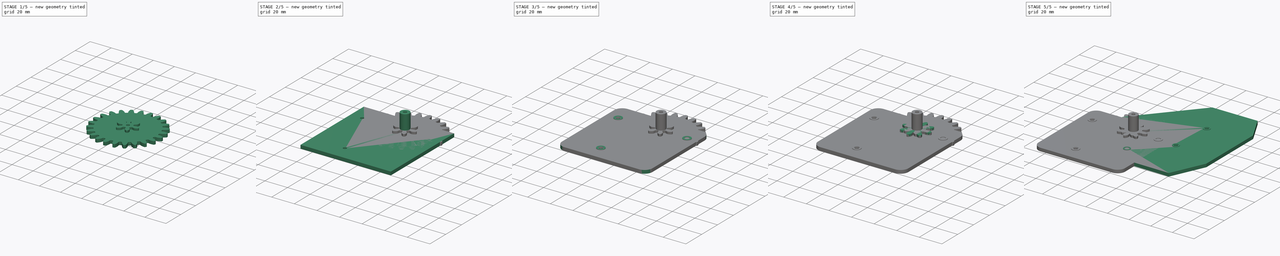
[diagram: build sequence overview — one tinted view per stage of 5, left to right]
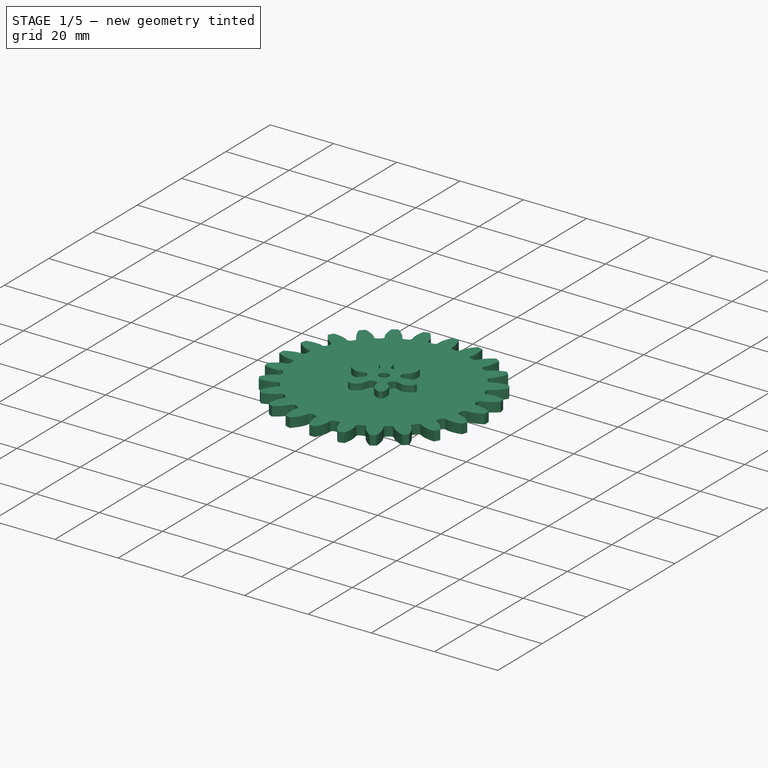
[diagram: stage 1 of 5 — iso view after this stage's code; geometry added in this stage tinted green]
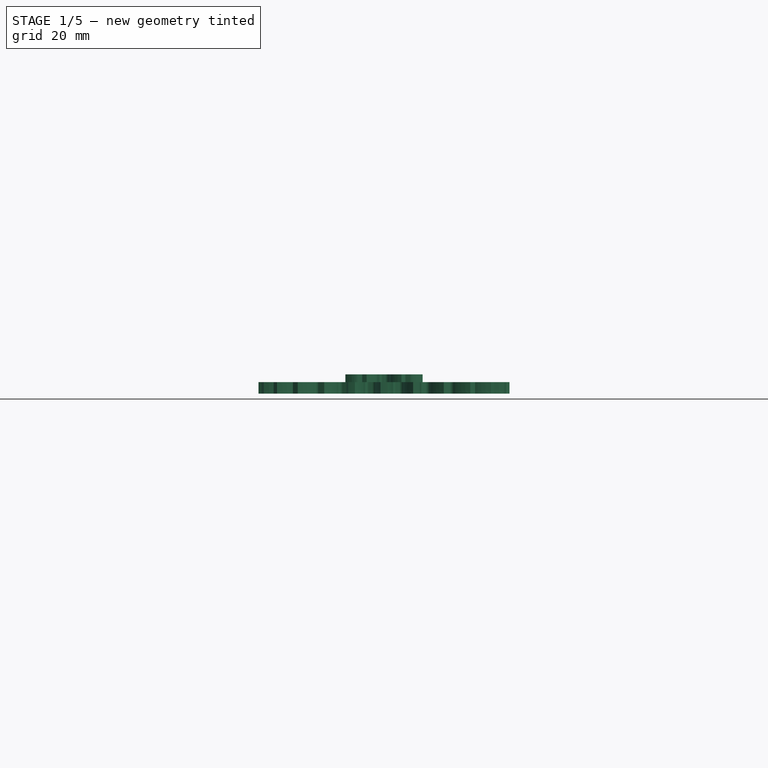
[diagram: stage 1 of 5 — front view after this stage's code; geometry added in this stage tinted green]
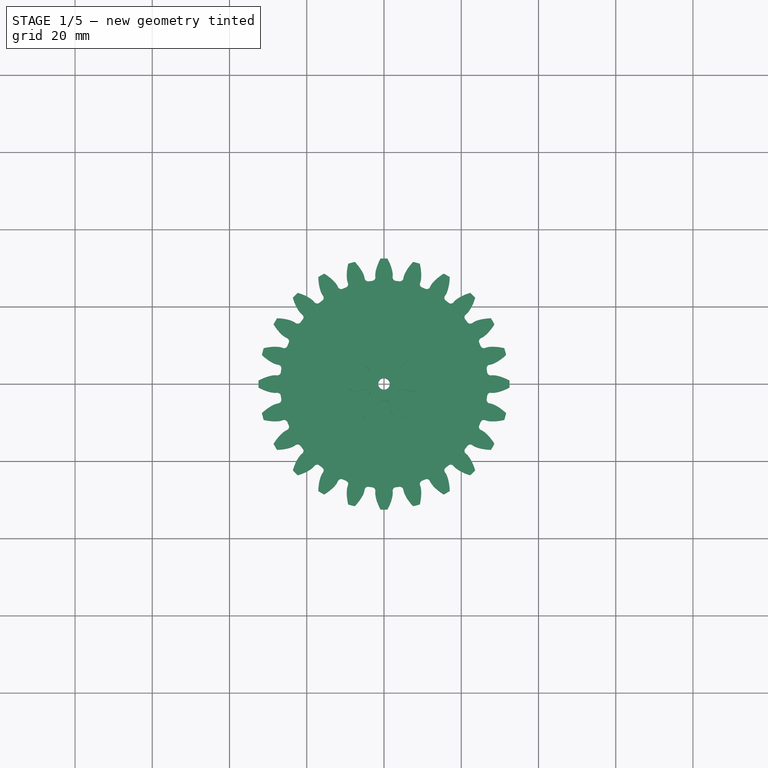
[diagram: stage 1 of 5 — top view after this stage's code; geometry added in this stage tinted green]
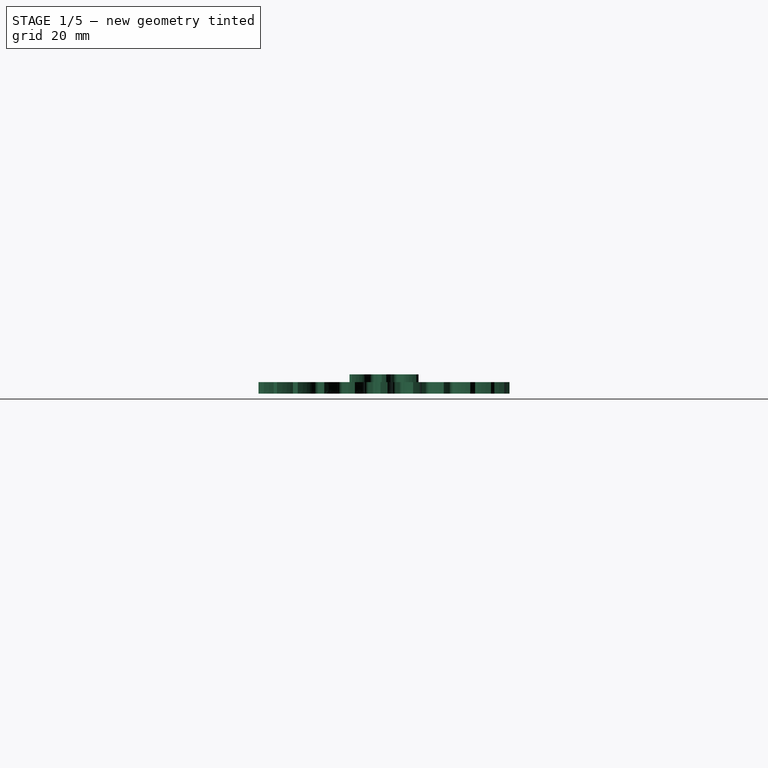
[diagram: stage 1 of 5 — right view after this stage's code; geometry added in this stage tinted green]
FCSTD DOCUMENT  (FreeCAD 0.18.3R)
Label: demo_gearbox_ratios
License: All rights reserved
LicenseURL: http://en.wikipedia.org/wiki/All_rights_reserved
objects: Sketcher::SketchObject×16, PartDesign::Pad×12, PartDesign::Pocket×9, PartDesign::Body×8, Part::Part2DObjectPython×6, App::DocumentObjectGroup×3, PartDesign::Fillet×1
note: 73 computed .brp shape members not serialized (recipe doc carries the construction recipe); baked Part::Feature solids carry a one-line shape summary decoded from their .brp

FEATURE [Sketcher::SketchObject] Sketch011
  MapMode = 5
  Placement = pos=(0,0,3) rot=(0,0,1;0rad)
  Support = -> [Fillet]
FEATURE [PartDesign::Body] Body004  label="geatbox_stand"
  Group = -> [Sketch007,Pad006,Sketch008,Pad007,Fillet,Sketch011]
  Origin = -> Origin004
  Placement = pos=(0,0,-3.5) rot=(0,0,1;0rad)
  Tip = -> Fillet
FEATURE [Part::Part2DObjectPython] InvoluteGear005  # Draft 2D object (typed FeaturePython)
  ExternalGear = true
  HighPrecision = true
  Modules = 2.5
  NumberOfTeeth = 24
  PressureAngle = 20
FEATURE [PartDesign::Pad] Pad010
  Length = 3
  Length2 = 100
  Profile = -> InvoluteGear005
  Type = 0
FEATURE [Sketcher::SketchObject] Sketch013
  MapMode = 5
  Placement = pos=(0,0,3) rot=(0,0,1;0rad)
  Support = -> [Pad010]
  sketch-geometry (1):
    g0: Circle CenterX=0 CenterY=0 CenterZ=0 NormalX=0 NormalY=0 NormalZ=1 AngleXU=0 Radius=1.5
  constraints (2):
    c: Radius(g0) = 1.5
    c: Coincident(g0,g-1)
FEATURE [PartDesign::Pocket] Pocket007
  BaseFeature = -> Pad010
  Length = 5
  Length2 = 100
  Profile = -> Sketch013
  Type = 0
FEATURE [PartDesign::Body] Body006  label="G24"
  Group = -> [InvoluteGear005,Pad010,Sketch013,Pocket007,Sketch012,Pocket006]
  Origin = -> Origin006
  Placement = pos=(40,-1,5) rot=(0,0,1;0rad)
  Tip = -> Pocket006
FEATURE [Part::Part2DObjectPython] InvoluteGear006  # Draft 2D object (typed FeaturePython)
  ExternalGear = true
  HighPrecision = true
  Modules = 2.5
  NumberOfTeeth = 6
  PressureAngle = 20
FEATURE [PartDesign::Pad] Pad011
  Length = 5
  Length2 = 100
  Profile = -> InvoluteGear006
  Type = 0
FEATURE [Sketcher::SketchObject] Sketch015
  MapMode = 5
  Placement = pos=(0,0,5) rot=(0,0,1;0rad)
  Support = -> [Pad011]
  sketch-geometry (1):
    g0: Circle CenterX=0 CenterY=0 CenterZ=0 NormalX=0 NormalY=0 NormalZ=1 AngleXU=0 Radius=1.5
  constraints (2):
    c: Radius(g0) = 1.5
    c: Coincident(g0,g-1)
FEATURE [PartDesign::Pocket] Pocket008
  BaseFeature = -> Pad011
  Length = 5
  Length2 = 100
  Profile = -> Sketch015
  Type = 0
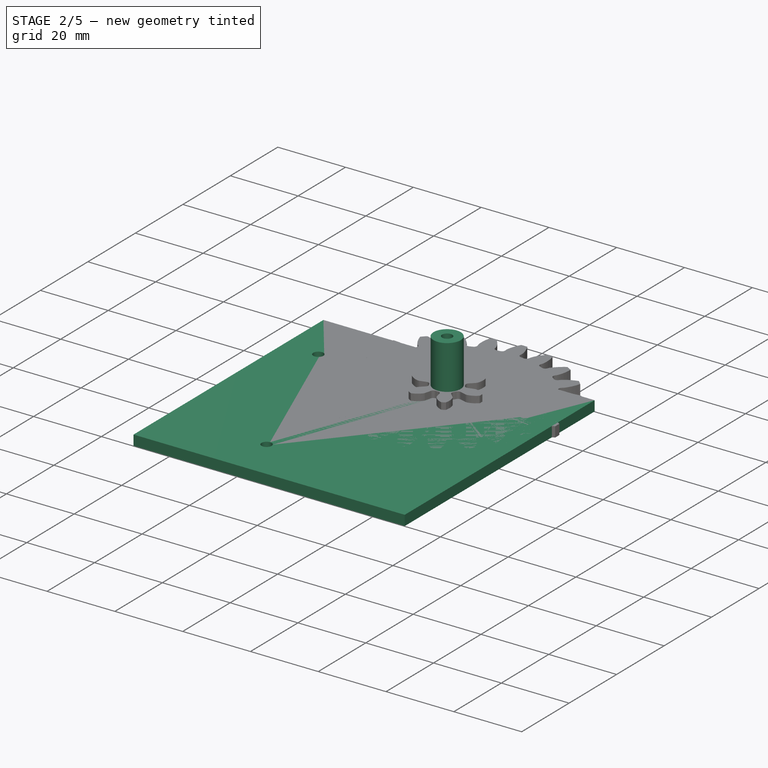
[diagram: stage 2 of 5 — iso view after this stage's code; geometry added in this stage tinted green]
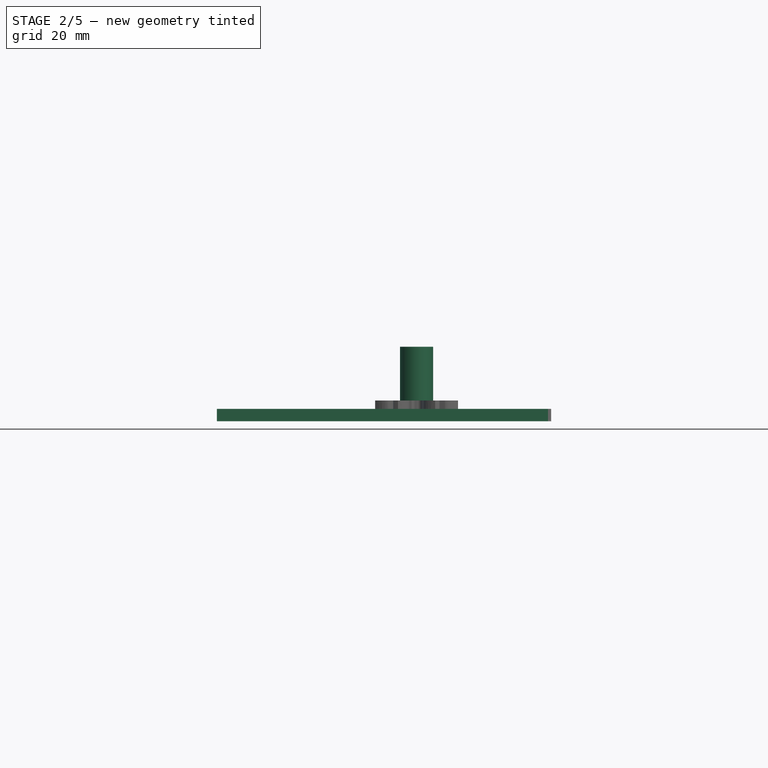
[diagram: stage 2 of 5 — front view after this stage's code; geometry added in this stage tinted green]
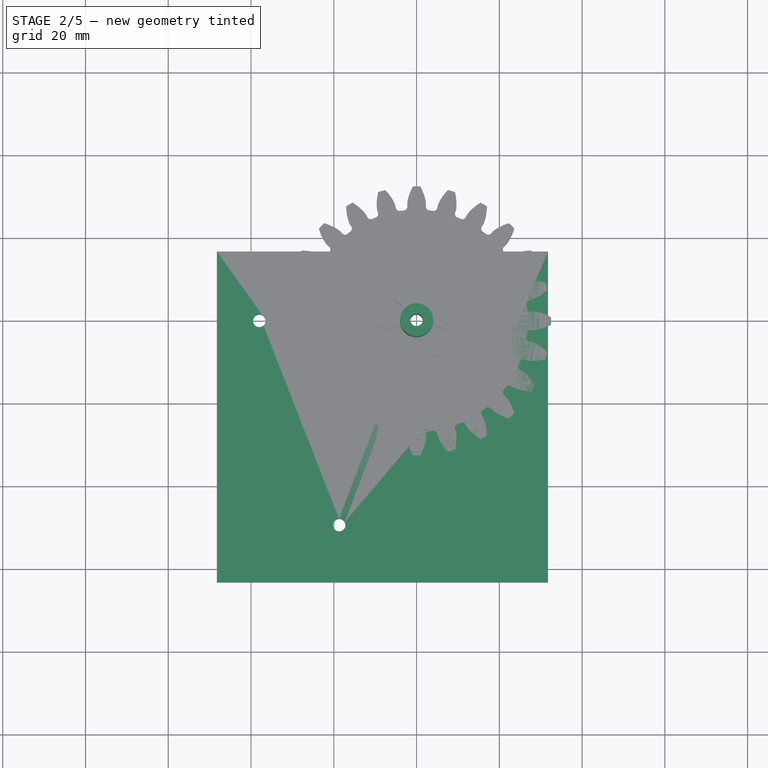
[diagram: stage 2 of 5 — top view after this stage's code; geometry added in this stage tinted green]
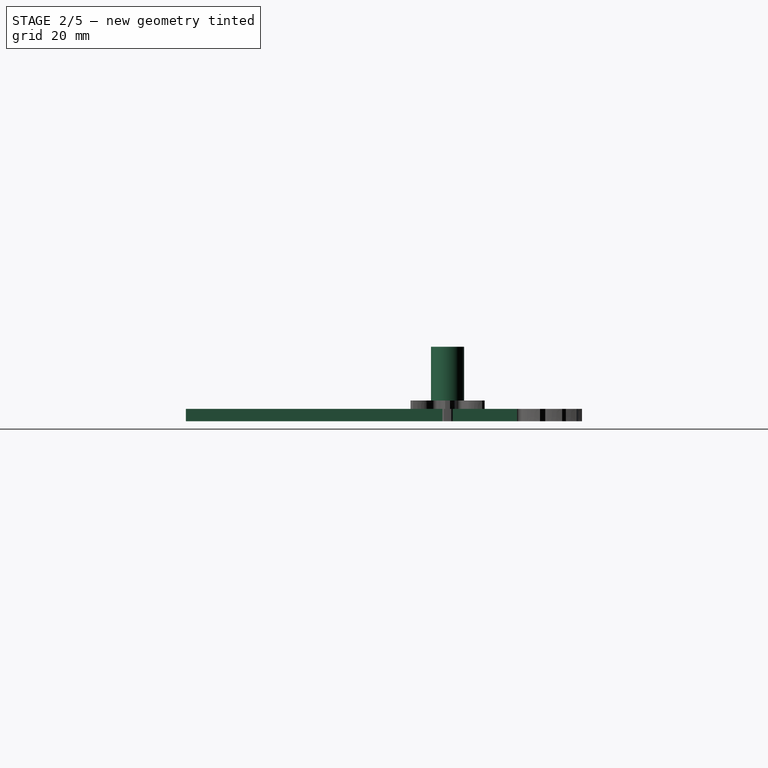
[diagram: stage 2 of 5 — right view after this stage's code; geometry added in this stage tinted green]
FEATURE [PartDesign::Body] Body003  label="G16"
  Group = -> [InvoluteGear003,Pad003,Sketch003,Pocket003,Sketch005,Pocket004]
  Origin = -> Origin003
  Tip = -> Pocket004
FEATURE [Sketcher::SketchObject] Sketch007
  MapMode = 5
  Support = -> [XY_Plane004]
  sketch-geometry (8):
    g0: LineSegment StartX=31.7506 StartY=16.7796 StartZ=0 EndX=-48.2494 EndY=16.7796 EndZ=0
    g1: LineSegment StartX=-48.2494 StartY=16.7796 StartZ=0 EndX=-48.2494 EndY=-63.2204 EndZ=0
    g2: LineSegment StartX=-48.2494 StartY=-63.2204 StartZ=0 EndX=31.7506 EndY=-63.2204 EndZ=0
    g3: LineSegment StartX=31.7506 StartY=-63.2204 StartZ=0 EndX=31.7506 EndY=16.7796 EndZ=0
    g4: Circle CenterX=0 CenterY=0 CenterZ=0 NormalX=0 NormalY=0 NormalZ=1 AngleXU=0 Radius=1.5
    g5: Circle CenterX=-38 CenterY=0 CenterZ=0 NormalX=0 NormalY=0 NormalZ=1 AngleXU=0 Radius=1.5
    g6: Circle CenterX=23 CenterY=0 CenterZ=0 NormalX=0 NormalY=0 NormalZ=1 AngleXU=0 Radius=1.5
    g7: Circle CenterX=-18.6957 CenterY=-49.3594 CenterZ=0 NormalX=0 NormalY=0 NormalZ=1 AngleXU=0 Radius=1.5
  constraints (19):
    c: Coincident(g0,g1)
    c: Coincident(g1,g2)
    c: Coincident(g2,g3)
    c: Coincident(g3,g0)
    c: Horizontal(g0)
    c: Horizontal(g2)
    c: Vertical(g1)
    c: Vertical(g3)
    c: DistanceY(g3,g3) = 80
    c: DistanceX(g0,g0) = 80
    c: Radius(g4) = 1.5
    c: Coincident(g4,g-1)
    c: Equal(g4,g5) = 1.5
    c: PointOnObject(g5,g-1)
    c: Distance(g5,g4) = 38
    c: Equal(g4,g6) = 1.5
    c: PointOnObject(g6,g-1)
    c: Distance(g6,g4) = 23
    c: Distance(g7,g5) = 53
FEATURE [PartDesign::Pad] Pad006
  Length = 3
  Length2 = 100
  Profile = -> Sketch007
  Type = 0
FEATURE [Sketcher::SketchObject] Sketch012
  MapMode = 5
  Placement = pos=(0,0,3) rot=(0,0,1;0rad)
  Support = -> [Pocket007]
  sketch-geometry (2):
    g0: Circle CenterX=18 CenterY=0 CenterZ=0 NormalX=0 NormalY=0 NormalZ=1 AngleXU=0 Radius=1.5
    g1: Circle CenterX=-18 CenterY=0 CenterZ=0 NormalX=0 NormalY=0 NormalZ=1 AngleXU=0 Radius=1.5
  constraints (5):
    c: Radius(g1) = 1.5
    c: Equal(g1,g0)
    c: Symmetric(g1,g0,g-1)
    c: Distance(g-1,g0) = 18
    c: PointOnObject(g0,g-1)
FEATURE [PartDesign::Pocket] Pocket006
  BaseFeature = -> Pocket007
  Length = 5
  Length2 = 100
  Profile = -> Sketch012
  Type = 0
FEATURE [PartDesign::Body] Body007  label="G6"
  Group = -> [InvoluteGear006,Pad011,Sketch015,Pocket008]
  Origin = -> Origin007
  Placement = pos=(40,-1,0) rot=(0,0,1;0.226893rad)
  Tip = -> Pocket008
FEATURE [Part::Part2DObjectPython] InvoluteGear007  # Draft 2D object (typed FeaturePython)
  ExternalGear = true
  HighPrecision = true
  Modules = 2.5
  NumberOfTeeth = 24
  PressureAngle = 20
FEATURE [PartDesign::Pad] Pad012
  Length = 3
  Length2 = 100
  Profile = -> InvoluteGear007
  Type = 0
FEATURE [Sketcher::SketchObject] Sketch016
  MapMode = 5
  Placement = pos=(0,0,3) rot=(0,0,1;0rad)
  Support = -> [Pad012]
  sketch-geometry (1):
    g0: Circle CenterX=0 CenterY=0 CenterZ=0 NormalX=0 NormalY=0 NormalZ=1 AngleXU=0 Radius=1.5
  constraints (2):
    c: Coincident(g0,g-1)
    c: Radius(g0) = 1.5
FEATURE [PartDesign::Pocket] Pocket009
  BaseFeature = -> Pad012
  Length = 5
  Length2 = 100
  Profile = -> Sketch016
  Type = 0
FEATURE [Sketcher::SketchObject] Sketch017
  ExternalGeometry = -> [Pocket009]
  MapMode = 5
  Placement = pos=(0,0,3) rot=(0,0,1;0rad)
  Support = -> [Pocket009]
  sketch-geometry (2):
    g0: Circle CenterX=0 CenterY=0 CenterZ=0 NormalX=0 NormalY=0 NormalZ=1 AngleXU=0 Radius=4
    g1: Circle CenterX=0 CenterY=0 CenterZ=0 NormalX=0 NormalY=0 NormalZ=1 AngleXU=0 Radius=1.5
  constraints (4):
    c: Coincident(g0,g-1)
    c: Coincident(g1,g0)
    c: Equal(g1,g-3)
    c: Radius(g0) = 4
FEATURE [PartDesign::Pad] Pad013
  BaseFeature = -> Pocket009
  Length = 15
  Length2 = 100
  Profile = -> Sketch017
  Type = 0
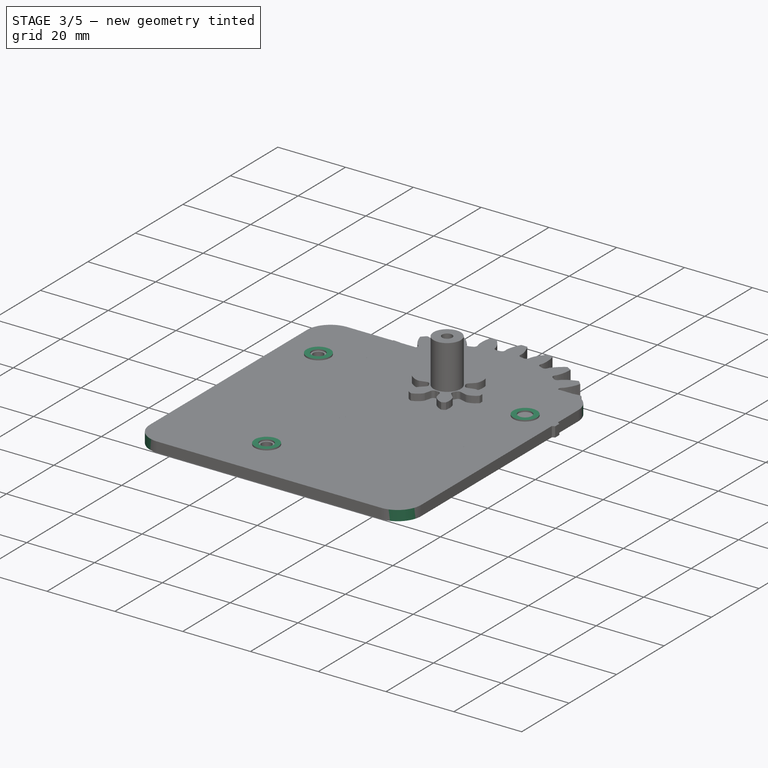
[diagram: stage 3 of 5 — iso view after this stage's code; geometry added in this stage tinted green]
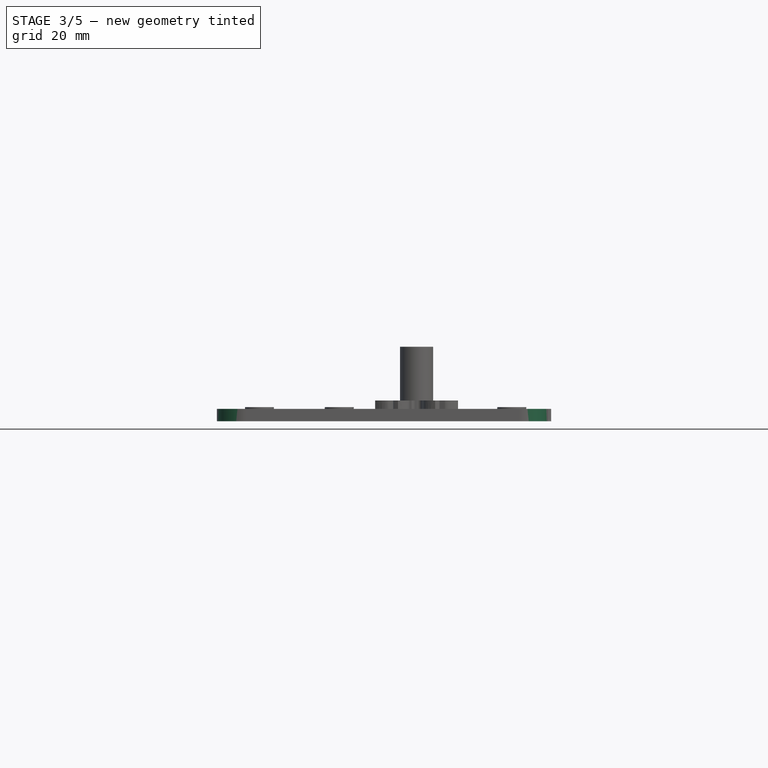
[diagram: stage 3 of 5 — front view after this stage's code; geometry added in this stage tinted green]
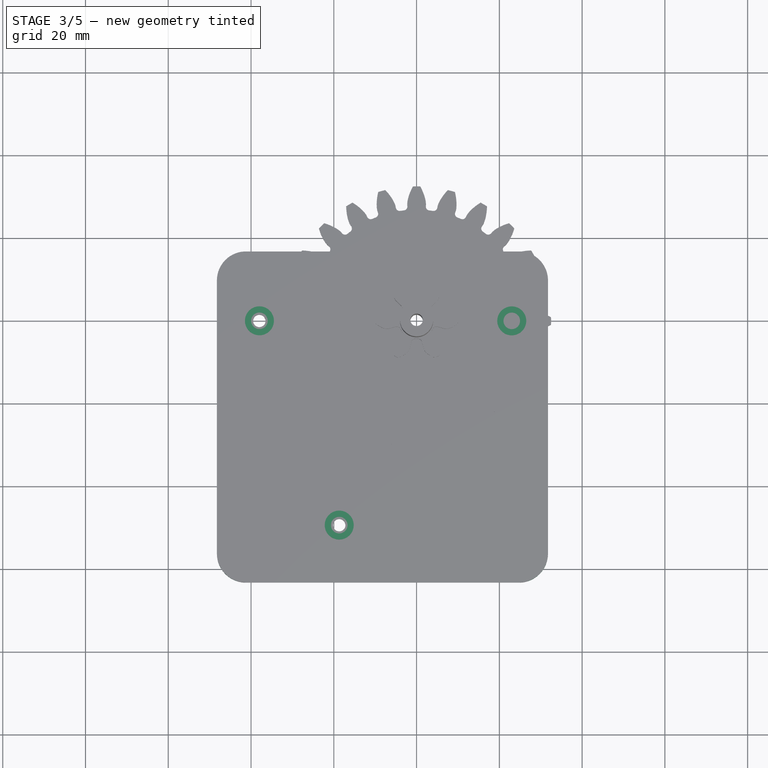
[diagram: stage 3 of 5 — top view after this stage's code; geometry added in this stage tinted green]
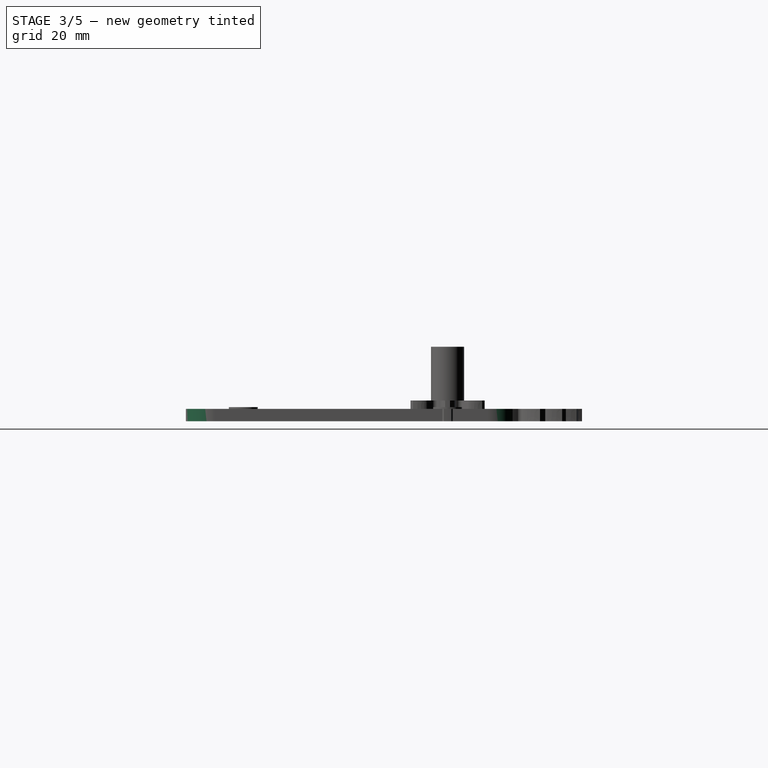
[diagram: stage 3 of 5 — right view after this stage's code; geometry added in this stage tinted green]
FEATURE [Part::Part2DObjectPython] InvoluteGear  # Draft 2D object (typed FeaturePython)
  ExternalGear = true
  HighPrecision = true
  Modules = 2.5
  NumberOfTeeth = 8
  PressureAngle = 20
FEATURE [PartDesign::Pad] Pad
  Length = 3
  Length2 = 100
  Profile = -> InvoluteGear
  Type = 0
FEATURE [Sketcher::SketchObject] Sketch
  MapMode = 5
  Placement = pos=(0,0,3) rot=(0,0,1;0rad)
  Support = -> [Pad]
  sketch-geometry (1):
    g0: Circle CenterX=0 CenterY=0 CenterZ=0 NormalX=0 NormalY=0 NormalZ=1 AngleXU=0 Radius=1.5
  constraints (2):
    c: Radius(g0) = 1.5
    c: Coincident(g0,g-1)
FEATURE [PartDesign::Pocket] Pocket
  BaseFeature = -> Pad
  Length = 5
  Length2 = 100
  Profile = -> Sketch
  Type = 0
FEATURE [Sketcher::SketchObject] Sketch008
  ExternalGeometry = -> [Pad006]
  MapMode = 5
  Placement = pos=(0,0,3) rot=(0,0,1;0rad)
  Support = -> [Pad006]
  sketch-geometry (8):
    g0: Circle CenterX=-37.9773 CenterY=0.015767 CenterZ=0 NormalX=0 NormalY=0 NormalZ=1 AngleXU=0 Radius=2
    g1: Circle CenterX=-37.9773 CenterY=0.015767 CenterZ=0 NormalX=0 NormalY=0 NormalZ=1 AngleXU=0 Radius=3.5
    g2: Circle CenterX=0 CenterY=0 CenterZ=0 NormalX=0 NormalY=0 NormalZ=1 AngleXU=0 Radius=2
    g3: Circle CenterX=0 CenterY=0 CenterZ=0 NormalX=0 NormalY=0 NormalZ=1 AngleXU=0 Radius=3.5
    g4: Circle CenterX=23 CenterY=0 CenterZ=0 NormalX=0 NormalY=0 NormalZ=1 AngleXU=0 Radius=3.5
    g5: Circle CenterX=23 CenterY=0 CenterZ=0 NormalX=0 NormalY=0 NormalZ=1 AngleXU=0 Radius=2
    g6: Circle CenterX=-18.6957 CenterY=-49.3594 CenterZ=0 NormalX=0 NormalY=0 NormalZ=1 AngleXU=0 Radius=3.5
    g7: Circle CenterX=-18.6957 CenterY=-49.3594 CenterZ=0 NormalX=0 NormalY=0 NormalZ=1 AngleXU=0 Radius=2
  constraints (9):
    c: Radius(g0) = 2
    c: Coincident(g1,g0)
    c: Radius(g1) = 3.5
    c: Equal(g0,g2) = 2
    c: Coincident(g3,g2)
    c: Equal(g1,g3) = 3.5
    c: Coincident(g4,g5)
    c: Coincident(g6,g7)
    c: Coincident(g4,g-5)
FEATURE [PartDesign::Pad] Pad007
  BaseFeature = -> Pad006
  Length = 0.4
  Length2 = 100
  Profile = -> Sketch008
  Type = 0
FEATURE [PartDesign::Fillet] Fillet
  Base = -> Pad007 [Edge5,Edge8,Edge2,Edge1]
  BaseFeature = -> Pad007
  Radius = 7
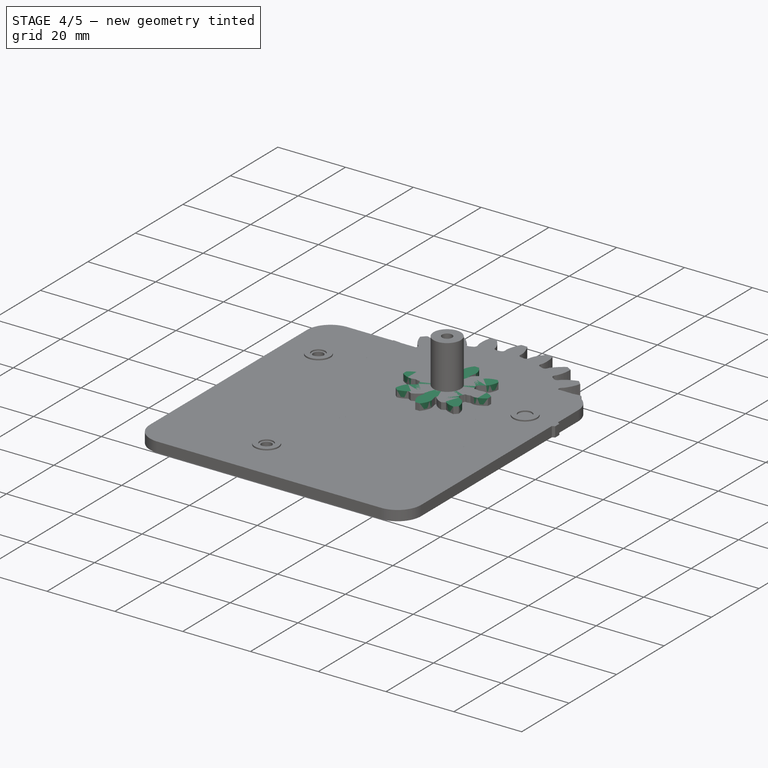
[diagram: stage 4 of 5 — iso view after this stage's code; geometry added in this stage tinted green]
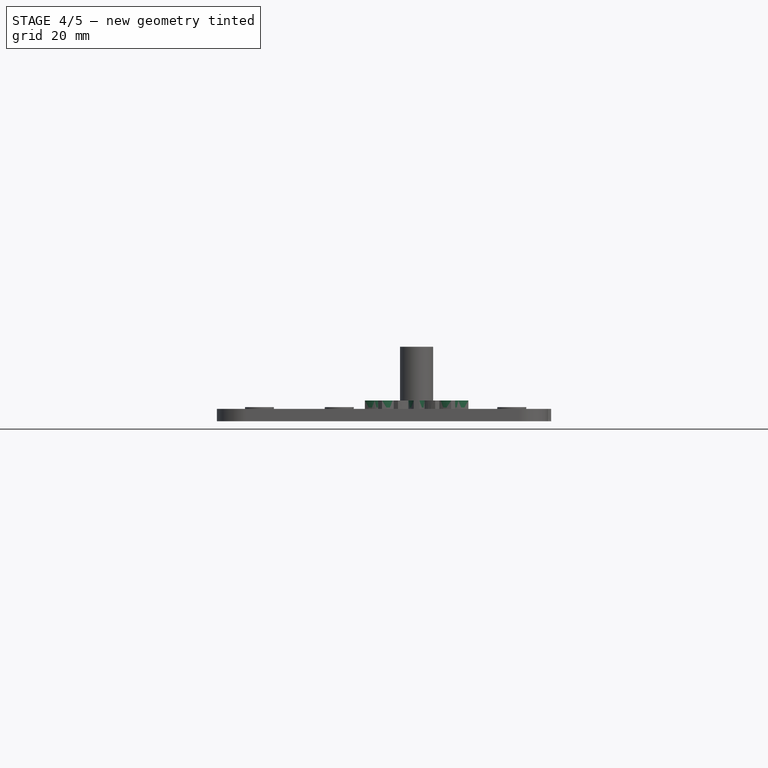
[diagram: stage 4 of 5 — front view after this stage's code; geometry added in this stage tinted green]
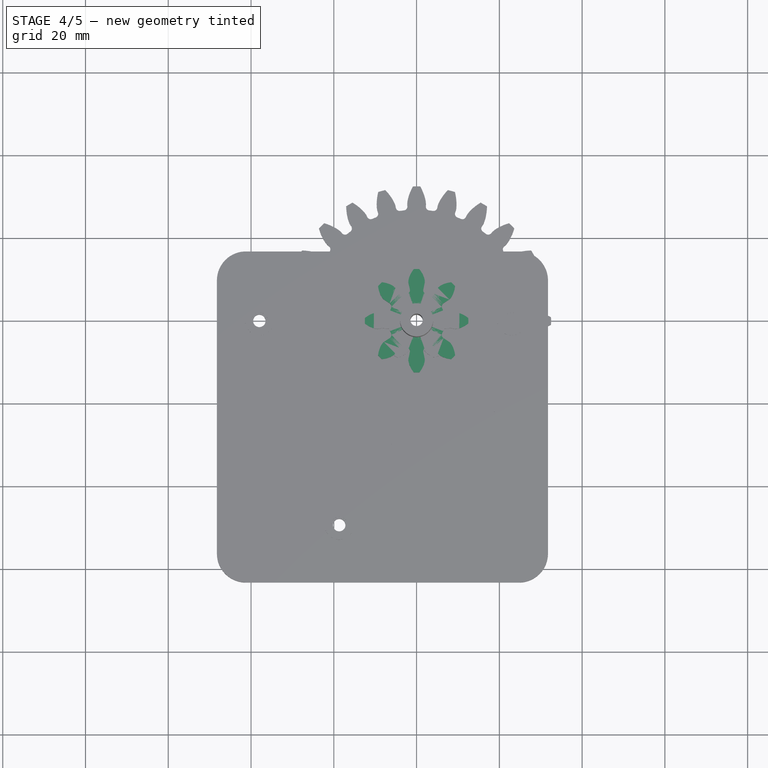
[diagram: stage 4 of 5 — top view after this stage's code; geometry added in this stage tinted green]
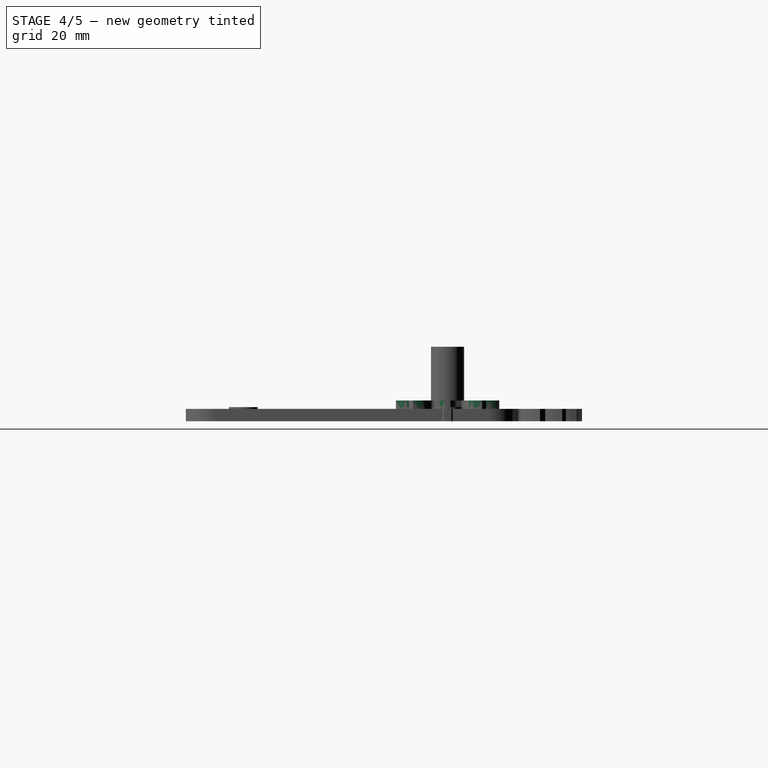
[diagram: stage 4 of 5 — right view after this stage's code; geometry added in this stage tinted green]
FEATURE [Part::Part2DObjectPython] InvoluteGear003  # Draft 2D object (typed FeaturePython)
  ExternalGear = true
  HighPrecision = true
  Modules = 2.5
  NumberOfTeeth = 16
  PressureAngle = 20
FEATURE [PartDesign::Pad] Pad003
  Length = 3
  Length2 = 100
  Profile = -> InvoluteGear003
  Type = 0
FEATURE [Sketcher::SketchObject] Sketch003
  MapMode = 5
  Placement = pos=(0,0,3) rot=(0,0,1;0rad)
  Support = -> [Pad003]
  sketch-geometry (1):
    g0: Circle CenterX=0 CenterY=0 CenterZ=0 NormalX=0 NormalY=0 NormalZ=1 AngleXU=0 Radius=1.5
  constraints (2):
    c: Radius(g0) = 1.5
    c: Coincident(g0,g-1)
FEATURE [PartDesign::Pocket] Pocket003
  BaseFeature = -> Pad003
  Length = 5
  Length2 = 100
  Profile = -> Sketch003
  Type = 0
FEATURE [Sketcher::SketchObject] Sketch004
  MapMode = 5
  Placement = pos=(0,0,3) rot=(0,0,1;0rad)
  Support = -> [Pocket]
  sketch-geometry (2):
    g0: Circle CenterX=0 CenterY=0 CenterZ=0 NormalX=0 NormalY=0 NormalZ=1 AngleXU=0 Radius=1.5
    g1: Circle CenterX=0 CenterY=0 CenterZ=0 NormalX=0 NormalY=0 NormalZ=1 AngleXU=0 Radius=4
  constraints (4):
    c: Coincident(g0,g1)
    c: Coincident(g0,g-1)
    c: Radius(g0) = 1.5
    c: Radius(g1) = 4
FEATURE [PartDesign::Pad] Pad004
  BaseFeature = -> Pocket
  Length = 15
  Length2 = 100
  Profile = -> Sketch004
  Type = 0
FEATURE [Part::Part2DObjectPython] InvoluteGear004  # Draft 2D object (typed FeaturePython)
  ExternalGear = true
  HighPrecision = true
  Modules = 2.5
  NumberOfTeeth = 8
  PressureAngle = 20
FEATURE [PartDesign::Pad] Pad008
  Length = 5
  Length2 = 100
  Profile = -> InvoluteGear004
  Type = 0
FEATURE [PartDesign::Body] Body008  label="G24_H"
  Group = -> [InvoluteGear007,Pad012,Sketch016,Pocket009,Sketch017,Pad013]
  Origin = -> Origin008
  Placement = pos=(42,37,0) rot=(0,0,1;0.401426rad)
  Tip = -> Pad013
FEATURE [Sketcher::SketchObject] Sketch018
  MapMode = 5
  Placement = pos=(0,0,5) rot=(0,0,1;0rad)
  Support = -> [Pad008]
  sketch-geometry (1):
    g0: Circle CenterX=0 CenterY=0 CenterZ=0 NormalX=0 NormalY=0 NormalZ=1 AngleXU=0 Radius=1.5
  constraints (2):
    c: Coincident(g0,g-1)
    c: Radius(g0) = 1.5
FEATURE [PartDesign::Pocket] Pocket010
  BaseFeature = -> Pad008
  Length = 5
  Length2 = 100
  Profile = -> Sketch018
  Type = 0
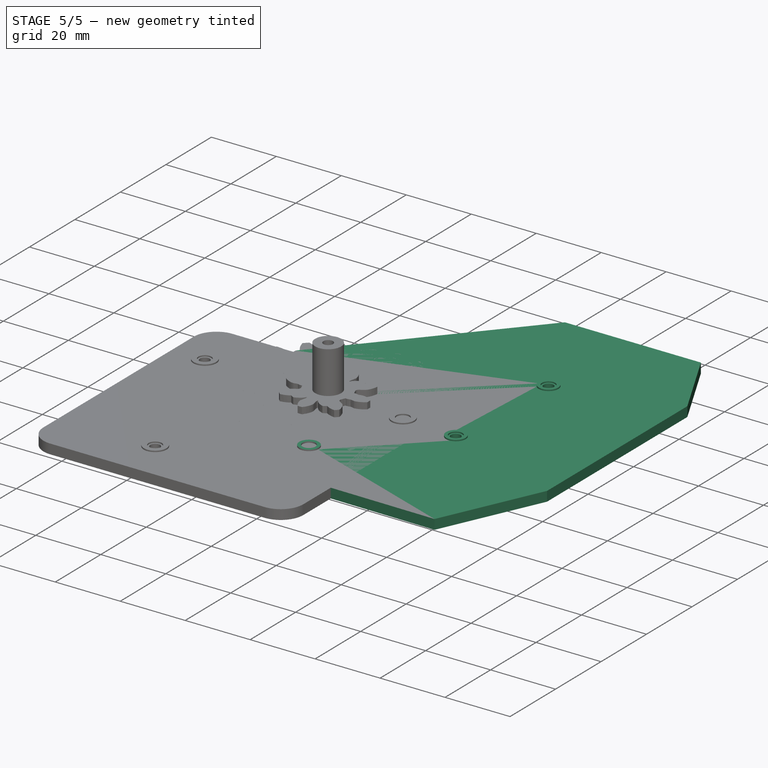
[diagram: stage 5 of 5 — iso view after this stage's code; geometry added in this stage tinted green]
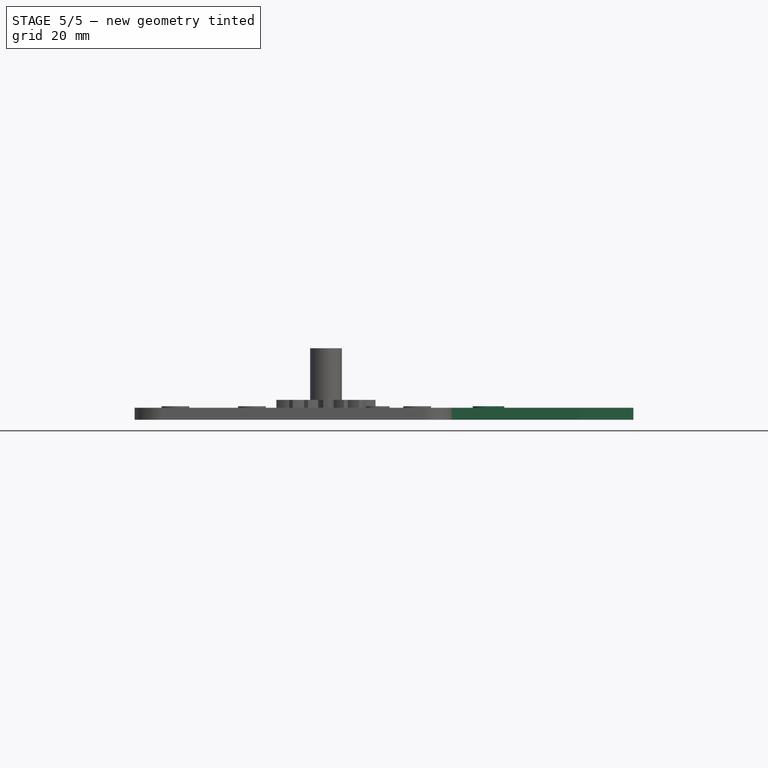
[diagram: stage 5 of 5 — front view after this stage's code; geometry added in this stage tinted green]
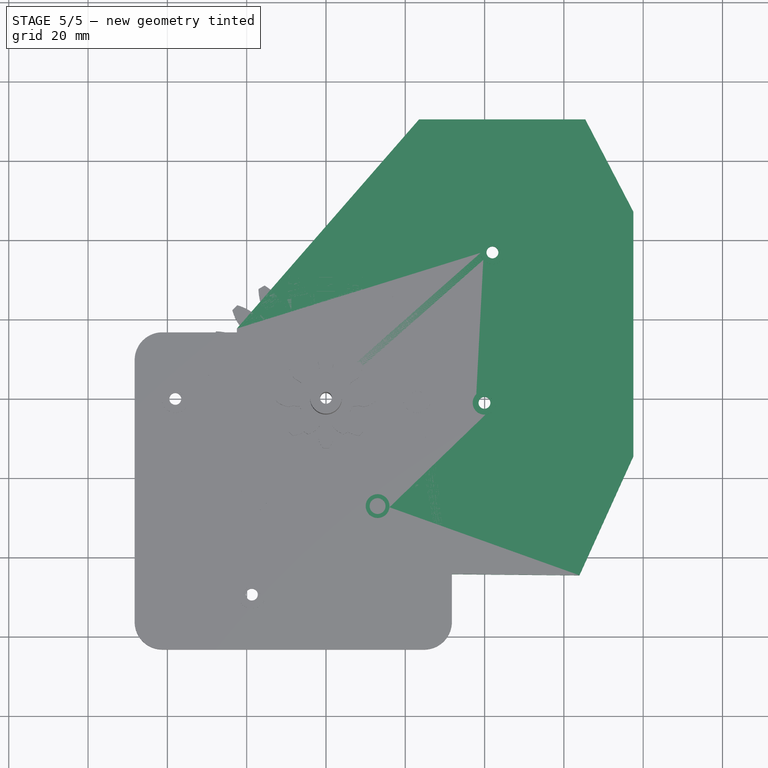
[diagram: stage 5 of 5 — top view after this stage's code; geometry added in this stage tinted green]
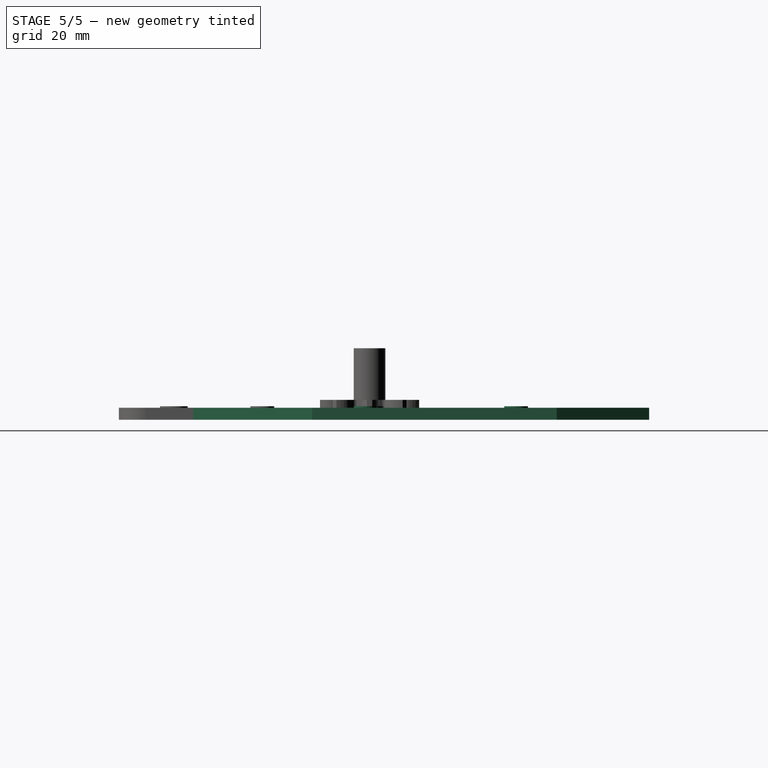
[diagram: stage 5 of 5 — right view after this stage's code; geometry added in this stage tinted green]
FEATURE [PartDesign::Body] Body  label="G8_H"
  Group = -> [InvoluteGear,Pad,Sketch,Pocket,Sketch004,Pad004]
  Origin = -> Origin
  Placement = pos=(13,-27,0) rot=(0,0,1;0.226893rad)
  Tip = -> Pad004
FEATURE [Sketcher::SketchObject] Sketch005
  MapMode = 5
  Placement = pos=(0,0,3) rot=(0,0,1;0rad)
  Support = -> [Pocket003]
  sketch-geometry (2):
    g0: Circle CenterX=13 CenterY=0 CenterZ=0 NormalX=0 NormalY=0 NormalZ=1 AngleXU=0 Radius=1.5
    g1: Circle CenterX=-13 CenterY=0 CenterZ=0 NormalX=0 NormalY=0 NormalZ=1 AngleXU=0 Radius=1.5
  constraints (5):
    c: Radius(g1) = 1.5
    c: Equal(g1,g0)
    c: Symmetric(g1,g0,g-1)
    c: Distance(g-1,g0) = 13
    c: PointOnObject(g0,g-1)
FEATURE [PartDesign::Pocket] Pocket004
  BaseFeature = -> Pocket003
  Length = 5
  Length2 = 100
  Profile = -> Sketch005
  Type = 0
FEATURE [PartDesign::Body] Body005  label="G8_S"
  Group = -> [InvoluteGear004,Pad008,Sketch018,Pocket010]
  Origin = -> Origin005
  Placement = pos=(0,0,3) rot=(0,0,1;0.314159rad)
  Tip = -> Pocket010
FEATURE [Sketcher::SketchObject] Sketch019
  MapMode = 5
  Support = -> [XY_Plane009]
  sketch-geometry (8):
    g0: LineSegment StartX=-22.4836 StartY=-19.1118 StartZ=0 EndX=3.27815 EndY=-43.9537 EndZ=0
    g1: LineSegment StartX=3.27815 StartY=-43.9537 StartZ=0 EndX=63.9094 EndY=-44.4987 EndZ=0
    g2: LineSegment StartX=63.9094 StartY=-44.4987 StartZ=0 EndX=77.5164 EndY=-14.4802 EndZ=0
    g3: LineSegment StartX=77.5164 StartY=-14.4802 StartZ=0 EndX=77.5164 EndY=47.2037 EndZ=0
    g4: LineSegment StartX=77.5164 StartY=47.2037 StartZ=0 EndX=65.3831 EndY=70.5013 EndZ=0
    g5: LineSegment StartX=65.3831 StartY=70.5013 StartZ=0 EndX=23.4886 EndY=70.5013 EndZ=0
    g6: LineSegment StartX=23.4886 StartY=70.5013 StartZ=0 EndX=-22.4836 EndY=17.7302 EndZ=0
    g7: LineSegment StartX=-22.4836 StartY=17.7302 StartZ=0 EndX=-22.4836 EndY=-19.1118 EndZ=0
  constraints (13):
    c: Coincident(g0,g1)
    c: Coincident(g1,g2)
    c: Coincident(g2,g3)
    c: Vertical(g3)
    c: Coincident(g3,g4)
    c: Coincident(g4,g5)
    c: Coincident(g5,g6)
    c: Coincident(g6,g7)
    c: Coincident(g7,g0)
    c: Vertical(g7)
    c: Horizontal(g5)
    c: DistanceX(g6,g2) = 100
    c: DistanceY(g1,g4) = 115
FEATURE [PartDesign::Pad] Pad014
  Length = 3
  Length2 = 100
  Profile = -> Sketch019
  Type = 0
FEATURE [Sketcher::SketchObject] Sketch020
  MapMode = 5
  Placement = pos=(0,0,3) rot=(0,0,1;0rad)
  Support = -> [Pad014]
  sketch-geometry (4):
    g0: Circle CenterX=0 CenterY=0 CenterZ=0 NormalX=0 NormalY=0 NormalZ=1 AngleXU=0 Radius=1.5
    g1: Circle CenterX=13.0047 CenterY=-26.9897 CenterZ=0 NormalX=0 NormalY=0 NormalZ=1 AngleXU=0 Radius=1.5
    g2: Circle CenterX=39.9668 CenterY=-1.001 CenterZ=0 NormalX=0 NormalY=0 NormalZ=1 AngleXU=0 Radius=1.5
    g3: Circle CenterX=41.9734 CenterY=36.9393 CenterZ=0 NormalX=0 NormalY=0 NormalZ=1 AngleXU=0 Radius=1.5
  constraints (3):
    c: Coincident(g0,g-1)
    c: Radius(g0) = 1.5
    c: Equal(g0,g1) = 1.5
FEATURE [PartDesign::Pocket] Pocket011
  BaseFeature = -> Pad014
  Length = 5
  Length2 = 100
  Profile = -> Sketch020
  Type = 0
FEATURE [Sketcher::SketchObject] Sketch021
  MapMode = 5
  Placement = pos=(0,0,3) rot=(0,0,1;0rad)
  Support = -> [Pocket011]
  sketch-geometry (8):
    g0: Circle CenterX=0 CenterY=0 CenterZ=0 NormalX=0 NormalY=0 NormalZ=1 AngleXU=0 Radius=3
    g1: Circle CenterX=0 CenterY=0 CenterZ=0 NormalX=0 NormalY=0 NormalZ=1 AngleXU=0 Radius=2
    g2: Circle CenterX=13.018 CenterY=-27.0432 CenterZ=0 NormalX=0 NormalY=0 NormalZ=1 AngleXU=0 Radius=3
    g3: Circle CenterX=13.018 CenterY=-27.0432 CenterZ=0 NormalX=0 NormalY=0 NormalZ=1 AngleXU=0 Radius=2
    g4: Circle CenterX=39.9993 CenterY=-0.988539 CenterZ=0 NormalX=0 NormalY=0 NormalZ=1 AngleXU=0 Radius=2
    g5: Circle CenterX=39.9993 CenterY=-0.988539 CenterZ=0 NormalX=0 NormalY=0 NormalZ=1 AngleXU=0 Radius=3
    g6: Circle CenterX=41.9698 CenterY=36.9688 CenterZ=0 NormalX=0 NormalY=0 NormalZ=1 AngleXU=0 Radius=2
    g7: Circle CenterX=41.9698 CenterY=36.9688 CenterZ=0 NormalX=0 NormalY=0 NormalZ=1 AngleXU=0 Radius=3
  constraints (9):
    c: Coincident(g0,g-1)
    c: Coincident(g1,g0)
    c: Radius(g0) = 3
    c: Radius(g1) = 2
    c: Coincident(g3,g2)
    c: Equal(g0,g2) = 3
    c: Equal(g1,g3) = 2
    c: Coincident(g4,g5)
    c: Coincident(g6,g7)
FEATURE [PartDesign::Pad] Pad015
  BaseFeature = -> Pocket011
  Length = 0.4
  Length2 = 100
  Profile = -> Sketch021
  Type = 0
FEATURE [PartDesign::Body] Body009  label="Stand"
  Group = -> [Sketch019,Pad014,Sketch020,Pocket011,Sketch021,Pad015]
  Origin = -> Origin009
  Placement = pos=(0,0,-4) rot=(0,0,1;0rad)
  Tip = -> Pad015
FEATURE [App::DocumentObjectGroup] Group  label="G16_8"
  Group = -> [Body003,Body005]
FEATURE [App::DocumentObjectGroup] Group001  label="SINGLE"
  Group = -> [Body,Body008,Body004]
FEATURE [App::DocumentObjectGroup] Group002  label="G6_24"
  Group = -> [Body006,Body007]
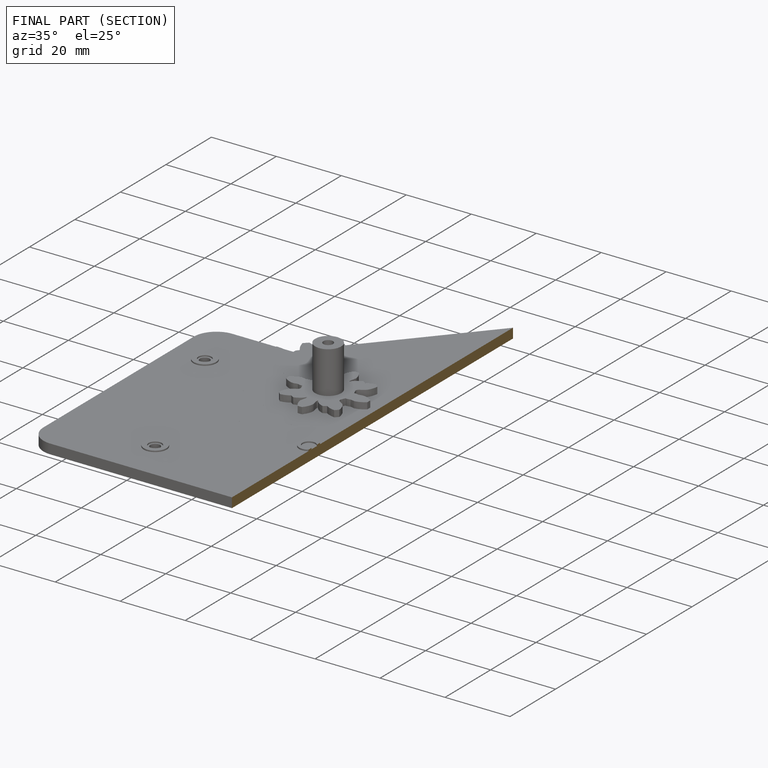
[diagram: finished part — half-section view (interior)]
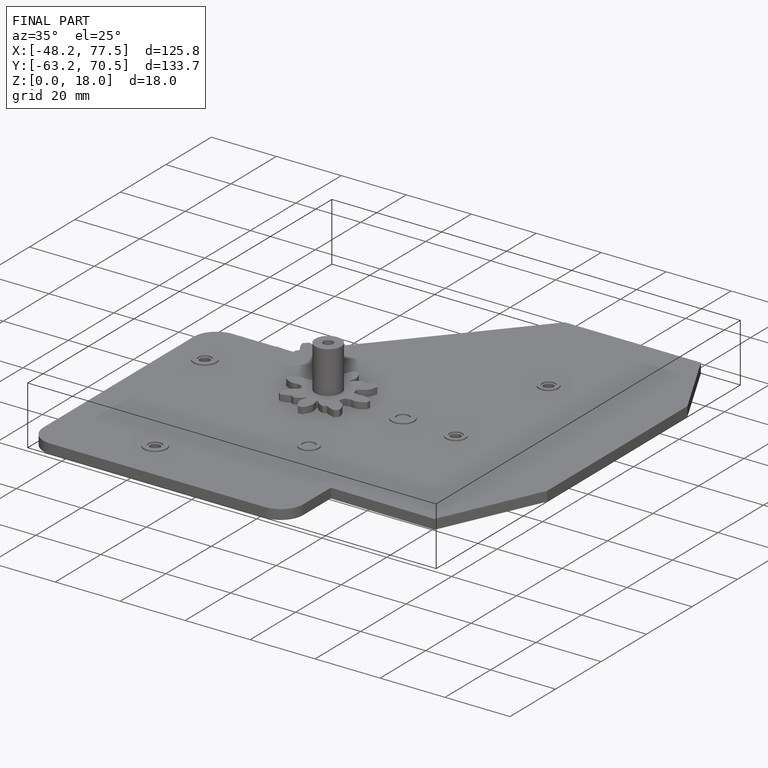
[diagram: finished part — iso view with bounding-box wireframe]
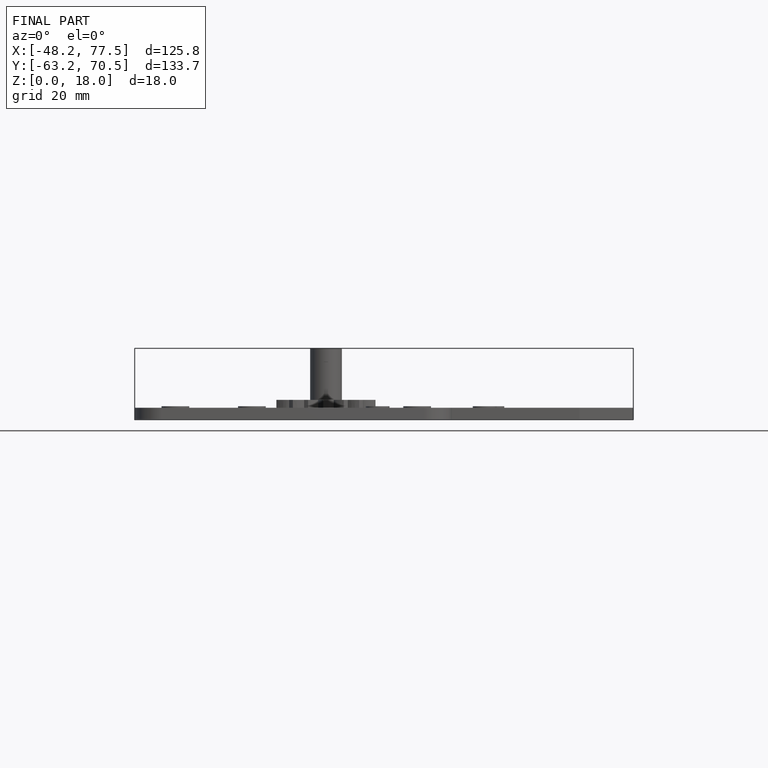
[diagram: finished part — front view with bounding-box wireframe]
